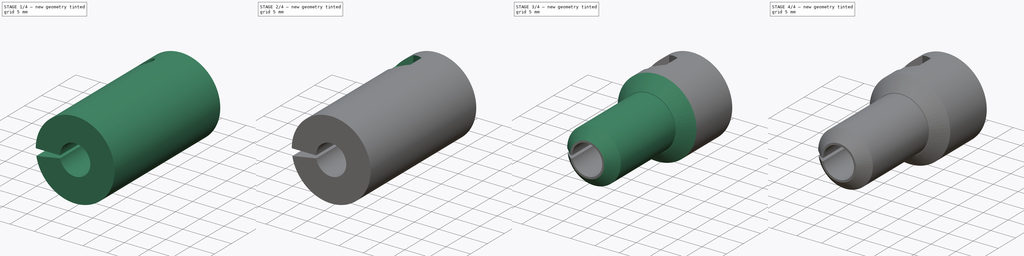
[diagram: build sequence overview — one tinted view per stage of 4, left to right]
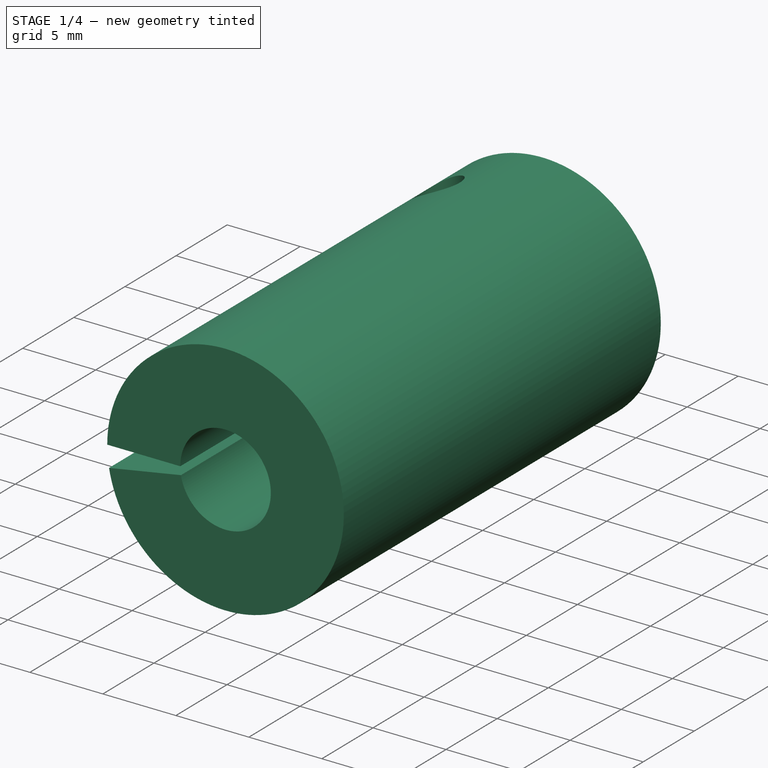
[diagram: stage 1 of 4 — iso view after this stage's code; geometry added in this stage tinted green]
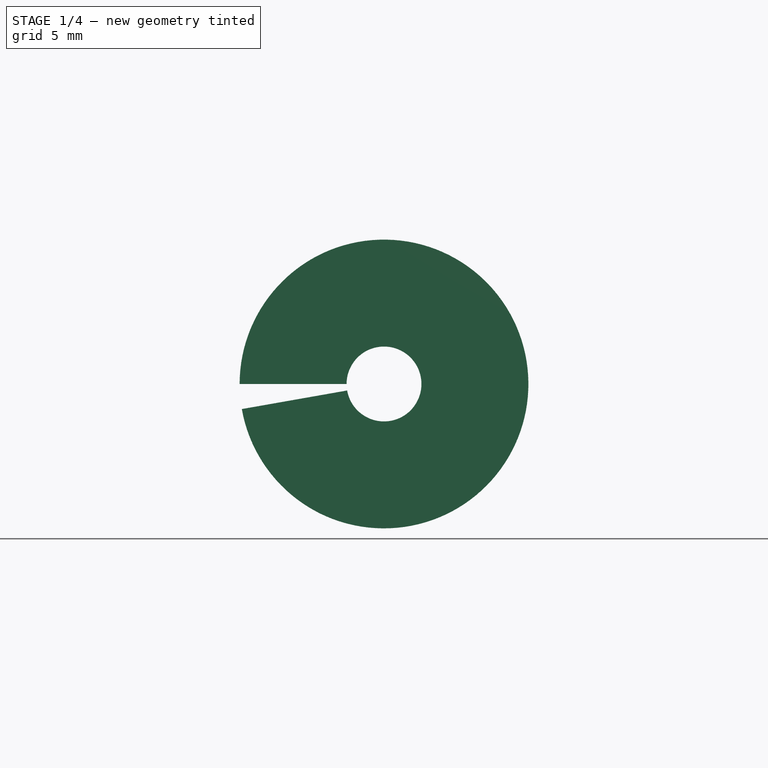
[diagram: stage 1 of 4 — front view after this stage's code; geometry added in this stage tinted green]
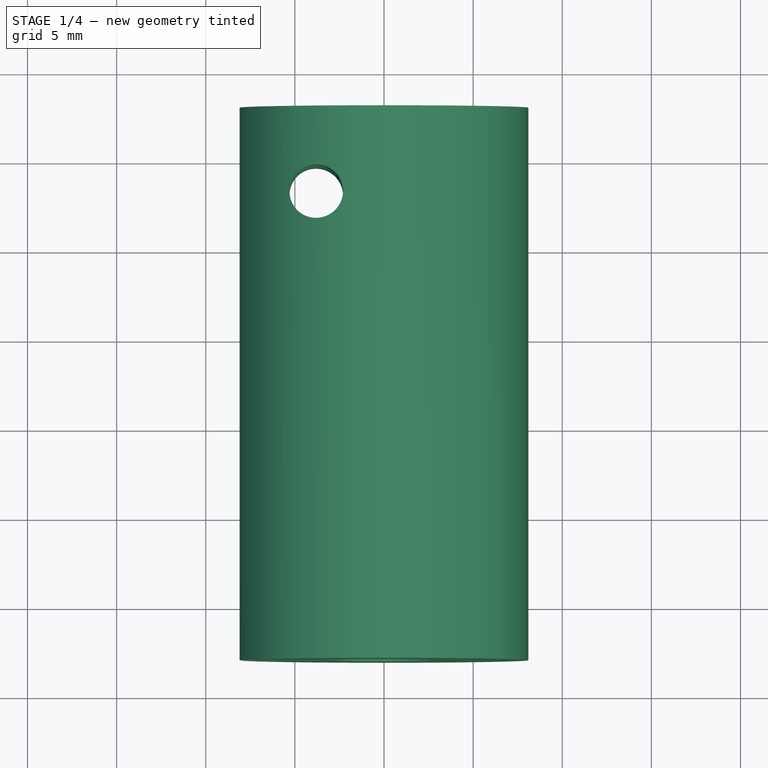
[diagram: stage 1 of 4 — top view after this stage's code; geometry added in this stage tinted green]
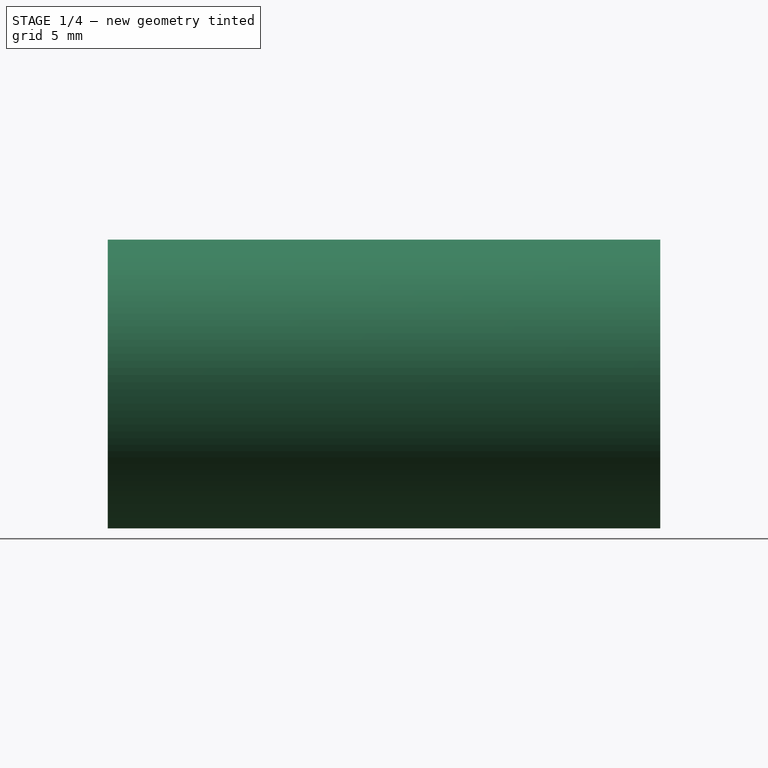
[diagram: stage 1 of 4 — right view after this stage's code; geometry added in this stage tinted green]
FCSTD DOCUMENT  (FreeCAD 0.21R33771 (Git))
Label: encoder_conector
License: All rights reserved
LicenseURL: http://en.wikipedia.org/wiki/All_rights_reserved
objects: Sketcher::SketchObject×6, PartDesign::Pocket×4, PartDesign::Chamfer×3, PartDesign::Plane×2, PartDesign::Revolution×1, PartDesign::Pad×1, PartDesign::Body×1
note: 27 computed .brp shape members not serialized (recipe doc carries the construction recipe); baked Part::Feature solids carry a one-line shape summary decoded from their .brp

FEATURE [Sketcher::SketchObject] Sketch
  FullyConstrained = true
  MapMode = 5
  Support = -> [XY_Plane]
  sketch-geometry (6):
    g0: LineSegment StartX=-2.1 StartY=8 StartZ=0 EndX=-2.1 EndY=0 EndZ=0
    g1: LineSegment StartX=-2.1 StartY=0 StartZ=0 EndX=-3.1 EndY=0 EndZ=0
    g2: LineSegment StartX=-3.1 StartY=0 StartZ=0 EndX=-3.1 EndY=-23 EndZ=0
    g3: LineSegment StartX=-3.1 StartY=-23 StartZ=0 EndX=-8.1 EndY=-23 EndZ=0
    g4: LineSegment StartX=-8.1 StartY=-23 StartZ=0 EndX=-8.1 EndY=8 EndZ=0
    g5: LineSegment StartX=-8.1 StartY=8 StartZ=0 EndX=-2.1 EndY=8 EndZ=0
  constraints (18):
    c: PointOnObject(g0,g-1)
    c: Vertical(g0)
    c: Coincident(g1,g0)
    c: Horizontal(g1)
    c: Vertical(g2)
    c: Coincident(g3,g2)
    c: Horizontal(g3)
    c: Coincident(g4,g3)
    c: Vertical(g4)
    c: Coincident(g5,g0)
    c: Horizontal(g5)
    c: Coincident(g1,g2)
    c: Coincident(g5,g4)
    c: DistanceX(g0,g-1) = 2.1
    c: DistanceY(g0,g0) = 8
    c: DistanceY(g4,g4) = 31
    c: DistanceX(g2,g-1) = 3.1
    c: DistanceX(g5,g5) = 6
FEATURE [PartDesign::Revolution] Revolution
  Angle = 350
  Axis = (0,1,0)
  Base = (0,0,0)
  Profile = -> Sketch
  ReferenceAxis = -> Sketch [V_Axis]
FEATURE [PartDesign::Plane] DatumPlane
  AttachmentOffset = pos=(0,0,14) rot=(0,0,1;0rad)
  Length = 60
  MapMode = 5
  Placement = pos=(0,0,14) rot=(0,0,1;0rad)
  ResizeMode = 0
  Support = -> [XY_Plane]
  Width = 60
FEATURE [Sketcher::SketchObject] Sketch002
  FullyConstrained = true
  MapMode = 5
  Placement = pos=(0,0,14) rot=(0,0,1;0rad)
  Support = -> [DatumPlane]
  sketch-geometry (1):
    g0: Circle CenterX=-3.8 CenterY=3.2 CenterZ=0 NormalX=0 NormalY=0 NormalZ=1 AngleXU=0 Radius=1.5
  constraints (3):
    c: Diameter(g0) = 3
    c: DistanceX(g0,g-1) = 3.8
    c: DistanceY(g-1,g0) = 3.2
FEATURE [Sketcher::SketchObject] Sketch001
  ExternalGeometry = -> [Sketch002]
  FullyConstrained = true
  MapMode = 5
  Placement = pos=(0,0,14) rot=(0,0,1;0rad)
  Support = -> [DatumPlane]
  sketch-geometry (7):
    g0: LineSegment StartX=-3.8 StartY=-0.1 StartZ=0 EndX=-0.942116 EndY=1.55 EndZ=0
    g1: LineSegment StartX=-0.942116 StartY=1.55 StartZ=0 EndX=-0.942116 EndY=4.85 EndZ=0
    g2: LineSegment StartX=-0.942116 StartY=4.85 StartZ=0 EndX=-3.8 EndY=6.5 EndZ=0
    g3: LineSegment StartX=-3.8 StartY=6.5 StartZ=0 EndX=-6.65788 EndY=4.85 EndZ=0
    g4: LineSegment StartX=-6.65788 StartY=4.85 StartZ=0 EndX=-6.65788 EndY=1.55 EndZ=0
    g5: LineSegment StartX=-6.65788 StartY=1.55 StartZ=0 EndX=-3.8 EndY=-0.1 EndZ=0
    g6: Circle CenterX=-3.8 CenterY=3.2 CenterZ=0 NormalX=0 NormalY=0 NormalZ=1 AngleXU=0 Radius=3.3
  constraints (16):
    c: Coincident(g0,g1)
    c: Coincident(g1,g2)
    c: Coincident(g2,g3)
    c: Coincident(g3,g4)
    c: Coincident(g4,g5)
    c: Coincident(g5,g0)
    c: Equal(g0, g1-g5) x5
    c: PointOnObject(g0,g6)
    c: PointOnObject(g1,g6)
    c: PointOnObject(g2,g6)
    c: PointOnObject(g3,g6)
    c: PointOnObject(g4,g6)
    c: PointOnObject(g5,g6)
    c: Vertical(g1)
    c: DistanceY(g0,g2) = 6.6
    c: Coincident(g6,g-3)
FEATURE [PartDesign::Pocket] Pocket
  BaseFeature = -> Revolution
  Direction = (0,0,-1)
  Length = 5
  Length2 = 5
  Profile = -> Sketch002
  ReferenceAxis = -> Sketch002 [N_Axis]
  Type = 1
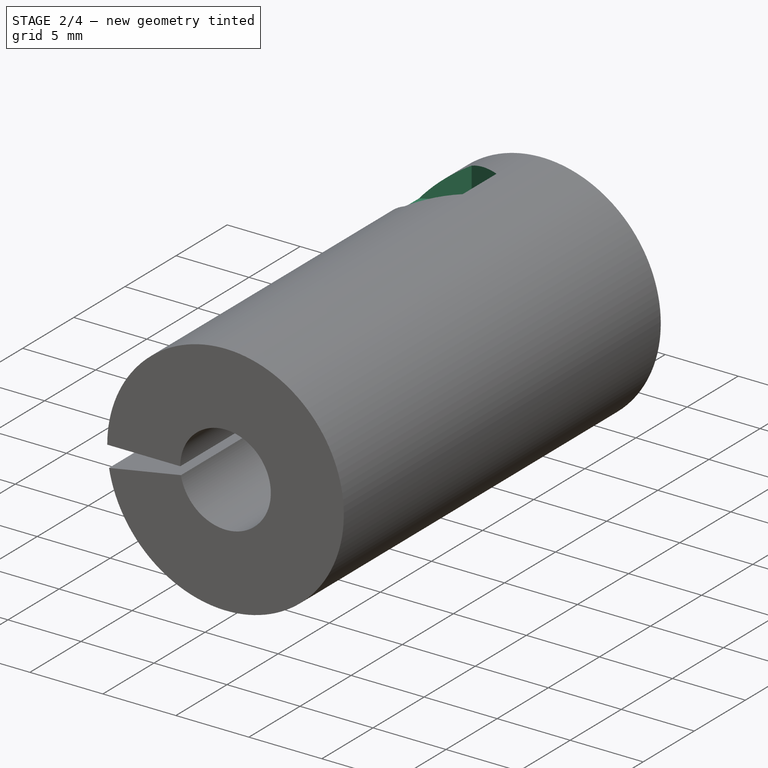
[diagram: stage 2 of 4 — iso view after this stage's code; geometry added in this stage tinted green]
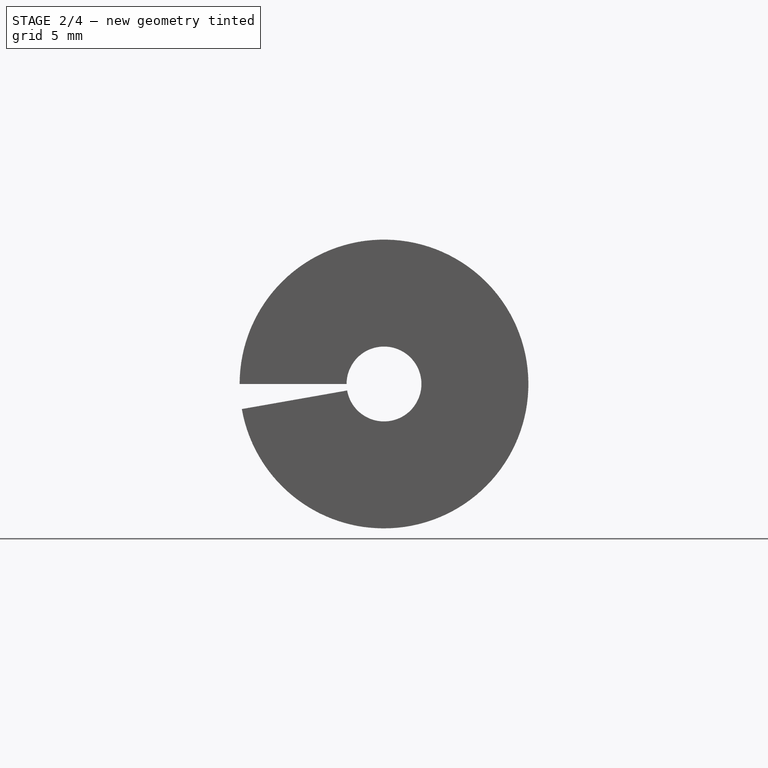
[diagram: stage 2 of 4 — front view after this stage's code; geometry added in this stage tinted green]
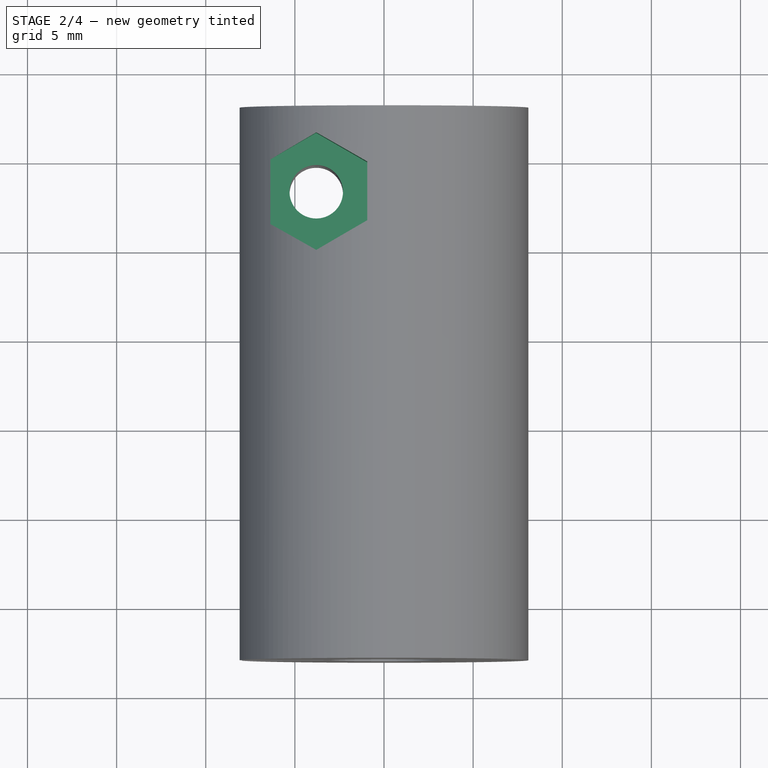
[diagram: stage 2 of 4 — top view after this stage's code; geometry added in this stage tinted green]
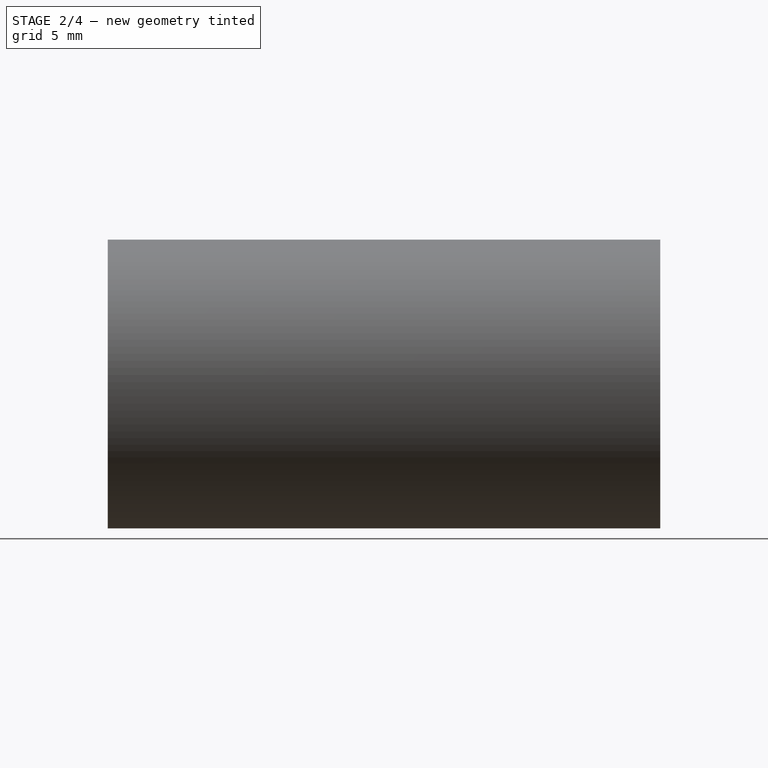
[diagram: stage 2 of 4 — right view after this stage's code; geometry added in this stage tinted green]
FEATURE [PartDesign::Pocket] Pocket001
  BaseFeature = -> Pocket
  Direction = (0,0,-1)
  Length = 9
  Length2 = 5
  Profile = -> Sketch001
  ReferenceAxis = -> Sketch001 [N_Axis]
  Type = 0
FEATURE [PartDesign::Plane] DatumPlane001
  AttachmentOffset = pos=(0,0,-15) rot=(0,0,1;0rad)
  Length = 60
  MapMode = 5
  Placement = pos=(0,0,-15) rot=(0,0,1;0rad)
  ResizeMode = 0
  Support = -> [XY_Plane]
  Width = 60
FEATURE [Sketcher::SketchObject] Sketch003
  ExternalGeometry = -> [Sketch002]
  FullyConstrained = true
  MapMode = 5
  Placement = pos=(0,0,-15) rot=(0,0,1;0rad)
  Support = -> [DatumPlane001]
  sketch-geometry (1):
    g0: Circle CenterX=-3.8 CenterY=3.2 CenterZ=0 NormalX=0 NormalY=0 NormalZ=1 AngleXU=0 Radius=2.7
  constraints (2):
    c: Coincident(g0,g-3)
    c: Diameter(g0) = 5.4
FEATURE [PartDesign::Pocket] Pocket002
  BaseFeature = -> Pocket001
  Direction = (0,0,-1)
  Length = 11
  Length2 = 5
  Profile = -> Sketch003
  ReferenceAxis = -> Sketch003 [N_Axis]
  Reversed = true
  Type = 0
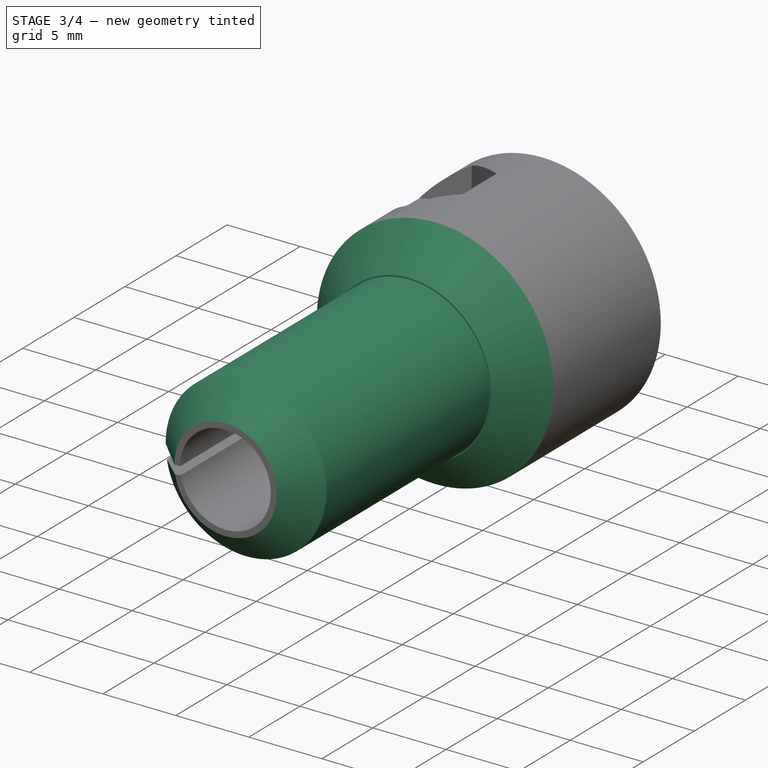
[diagram: stage 3 of 4 — iso view after this stage's code; geometry added in this stage tinted green]
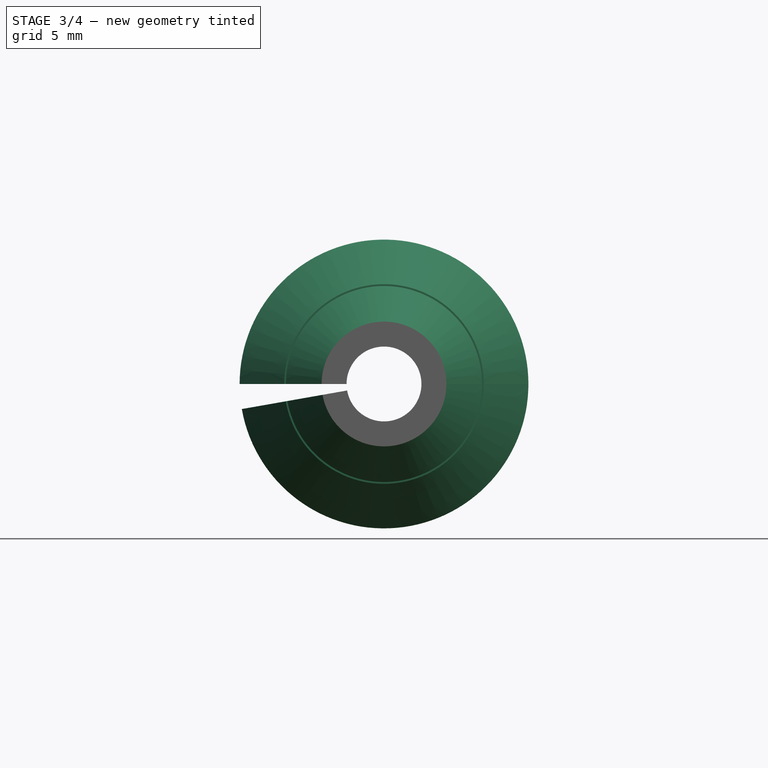
[diagram: stage 3 of 4 — front view after this stage's code; geometry added in this stage tinted green]
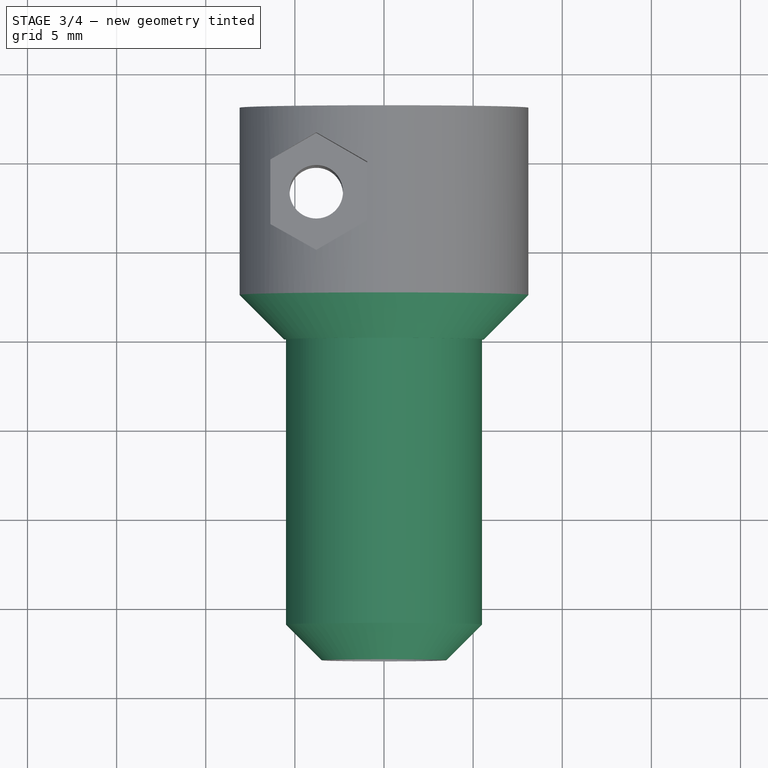
[diagram: stage 3 of 4 — top view after this stage's code; geometry added in this stage tinted green]
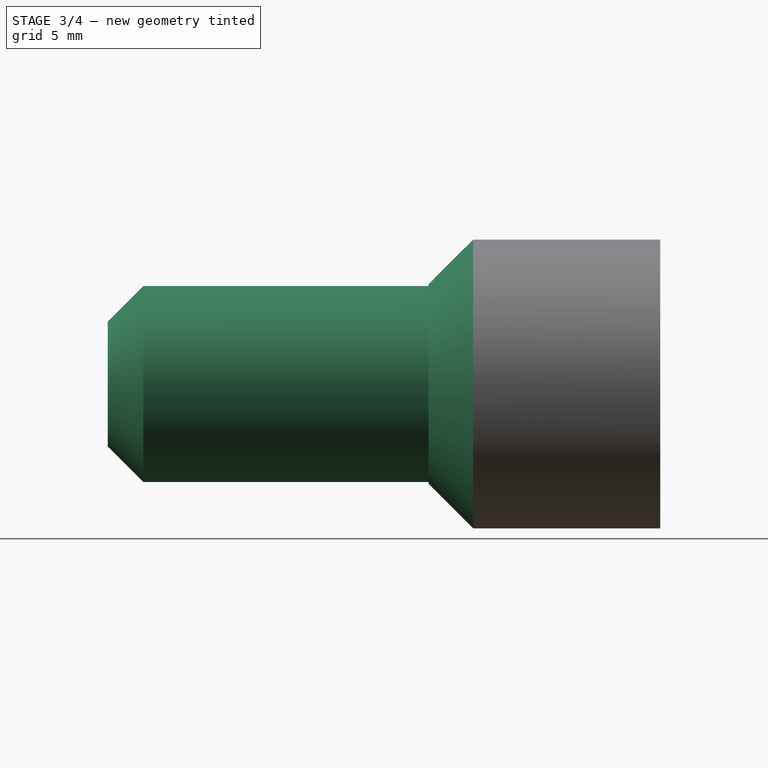
[diagram: stage 3 of 4 — right view after this stage's code; geometry added in this stage tinted green]
FEATURE [Sketcher::SketchObject] Sketch004
  ExternalGeometry = -> [Pocket002]
  FullyConstrained = true
  MapMode = 5
  Placement = pos=(0,-23,0) rot=(1,0,0;1.5708rad)
  Support = -> [Pocket002]
  sketch-geometry (2):
    g0: Circle CenterX=0 CenterY=0 CenterZ=0 NormalX=0 NormalY=0 NormalZ=1 AngleXU=0 Radius=5.5
    g1: Circle CenterX=0 CenterY=0 CenterZ=0 NormalX=0 NormalY=0 NormalZ=1 AngleXU=0 Radius=8.1
  constraints (4):
    c: Coincident(g0,g-1)
    c: Diameter(g0) = 11
    c: Coincident(g1,g0)
    c: Equal(g1,g-3)
FEATURE [PartDesign::Pocket] Pocket003
  BaseFeature = -> Pocket002
  Direction = (0,1,-2e-16)
  Length = 18
  Length2 = 5
  Profile = -> Sketch004
  ReferenceAxis = -> Sketch004 [N_Axis]
  Type = 0
FEATURE [PartDesign::Chamfer] Chamfer
  Angle = 45
  Base = -> Pocket003 [Edge23]
  BaseFeature = -> Pocket003
  ChamferType = 0
  FlipDirection = false
  Size = 2.5
  Size2 = 1
  SupportTransform = false
  UseAllEdges = false
FEATURE [PartDesign::Chamfer] Chamfer001
  Angle = 45
  Base = -> Chamfer [Edge30]
  BaseFeature = -> Chamfer
  ChamferType = 0
  FlipDirection = false
  Size = 2
  Size2 = 1
  SupportTransform = false
  UseAllEdges = false
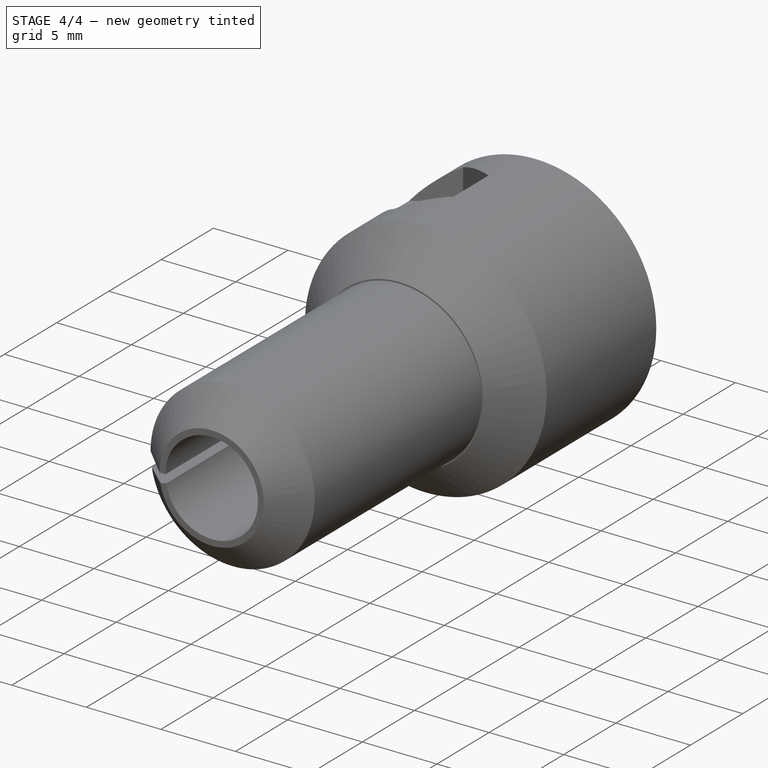
[diagram: stage 4 of 4 — iso view after this stage's code; geometry added in this stage tinted green]
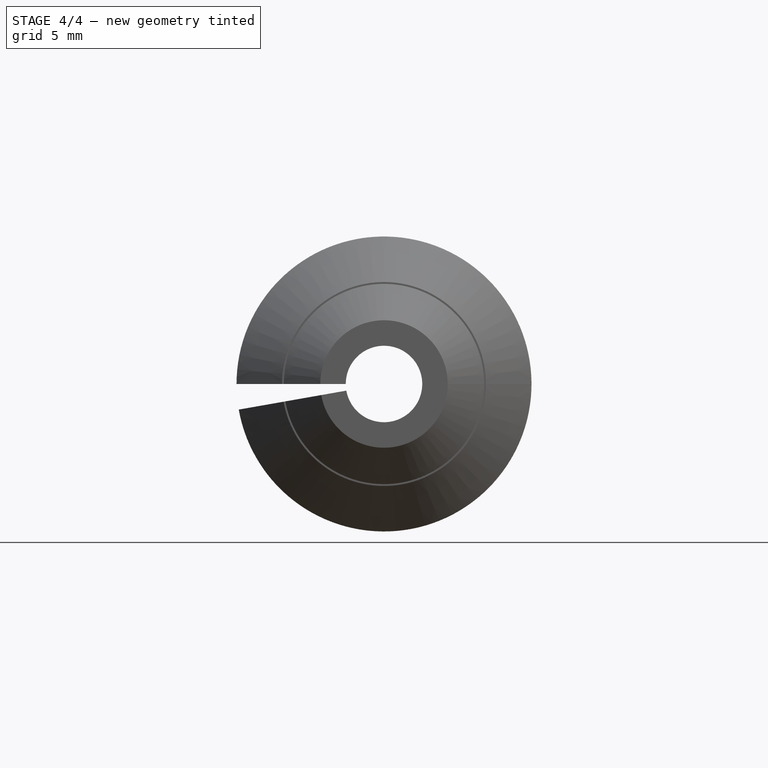
[diagram: stage 4 of 4 — front view after this stage's code; geometry added in this stage tinted green]
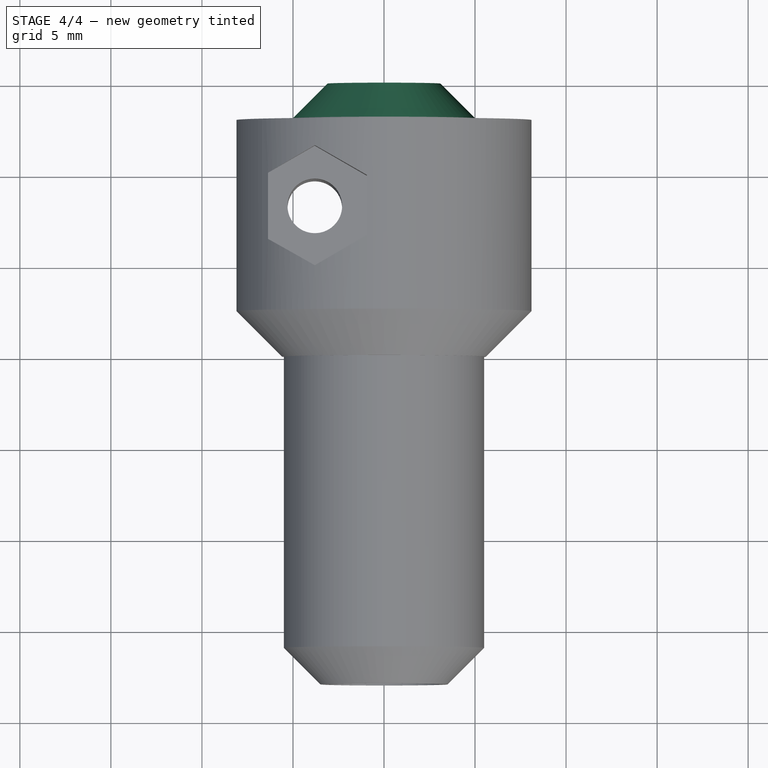
[diagram: stage 4 of 4 — top view after this stage's code; geometry added in this stage tinted green]
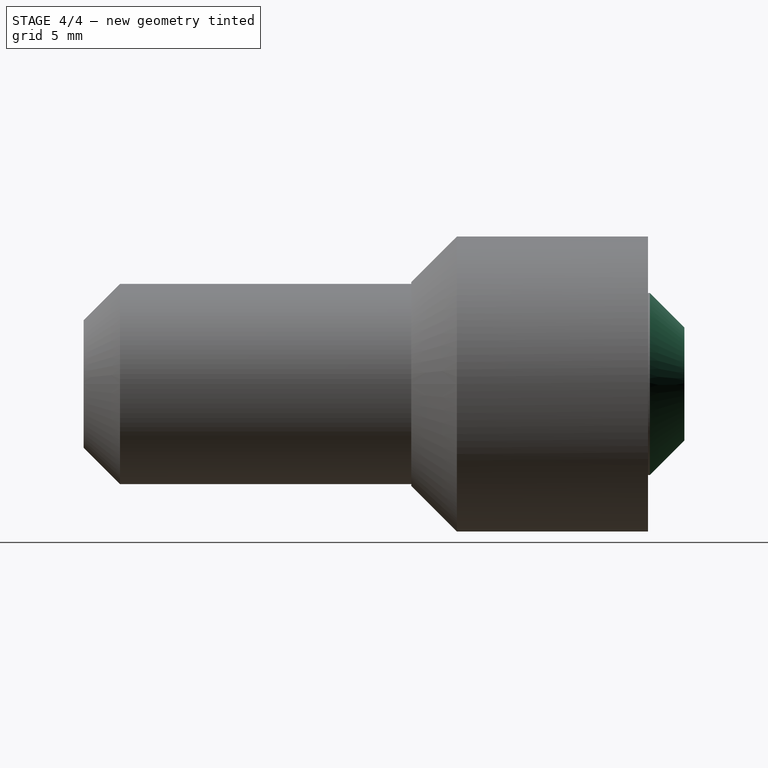
[diagram: stage 4 of 4 — right view after this stage's code; geometry added in this stage tinted green]
FEATURE [Sketcher::SketchObject] Sketch005
  ExternalGeometry = -> [Chamfer001]
  FullyConstrained = true
  MapMode = 5
  Placement = pos=(0,8,0) rot=(0,0.707107,0.707107;3.14159rad)
  Support = -> [Chamfer001]
  sketch-geometry (4):
    g0: ArcOfCircle CenterX=0 CenterY=0 CenterZ=0 NormalX=0 NormalY=0 NormalZ=1 AngleXU=0 Radius=5 StartAngle=0 EndAngle=6.10865
    g1: ArcOfCircle CenterX=-2e-16 CenterY=-1.8e-15 CenterZ=0 NormalX=0 NormalY=0 NormalZ=1 AngleXU=0 Radius=2.1 StartAngle=9e-16 EndAngle=6.10865
    g2: LineSegment StartX=2.1 StartY=0 StartZ=0 EndX=5 EndY=0 EndZ=0
    g3: LineSegment StartX=2.0681 StartY=-0.364661 StartZ=0 EndX=4.92404 EndY=-0.868241 EndZ=0
  constraints (11):
    c: Coincident(g0,g-1)
    c: PointOnObject(g0,g-3)
    c: Diameter(g0) = 10
    c: Coincident(g1,g-4)
    c: Coincident(g1,g-3)
    c: Equal(g1,g-5)
    c: Coincident(g2,g1)
    c: Coincident(g2,g0)
    c: Horizontal(g2)
    c: Coincident(g3,g1)
    c: Coincident(g3,g0)
FEATURE [PartDesign::Pad] Pad
  BaseFeature = -> Chamfer001
  Direction = (0,1,-2e-16)
  Length = 2
  Length2 = 10
  Profile = -> Sketch005
  ReferenceAxis = -> Sketch005 [N_Axis]
  Type = 0
FEATURE [PartDesign::Chamfer] Chamfer002
  Angle = 45
  Base = -> Pad [Edge68]
  BaseFeature = -> Pad
  ChamferType = 0
  FlipDirection = false
  Size = 1.9
  Size2 = 1
  SupportTransform = false
  UseAllEdges = false
FEATURE [PartDesign::Body] Body
  Group = -> [Sketch,Revolution,DatumPlane,Sketch001,Sketch002,Pocket,Pocket001,DatumPlane001,Sketch003,Pocket002,Sketch004,Pocket003,Chamfer,Chamfer001,Sketch005,Pad,Chamfer002]
  Origin = -> Origin
  Tip = -> Chamfer002
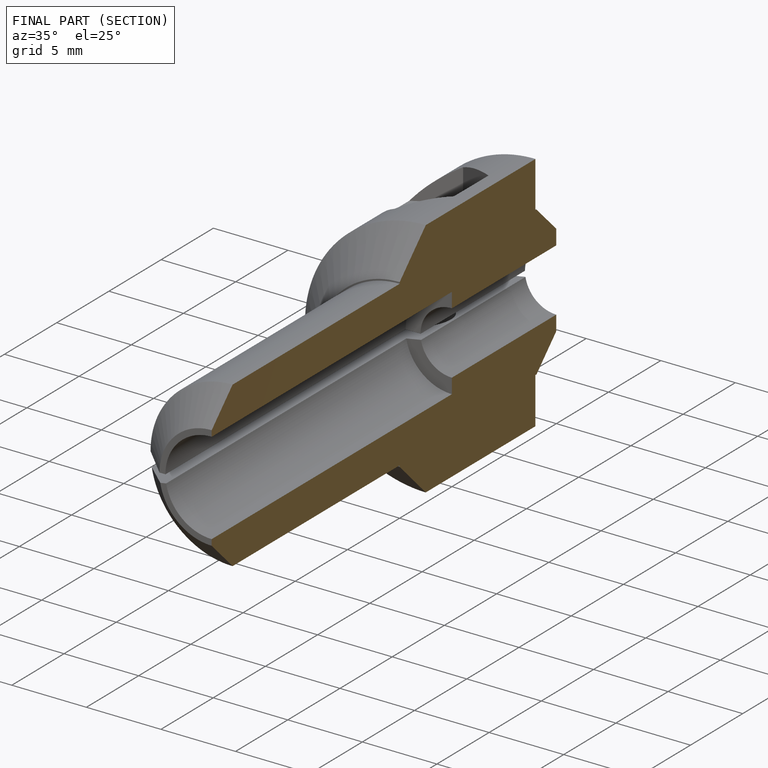
[diagram: finished part — half-section view (interior)]
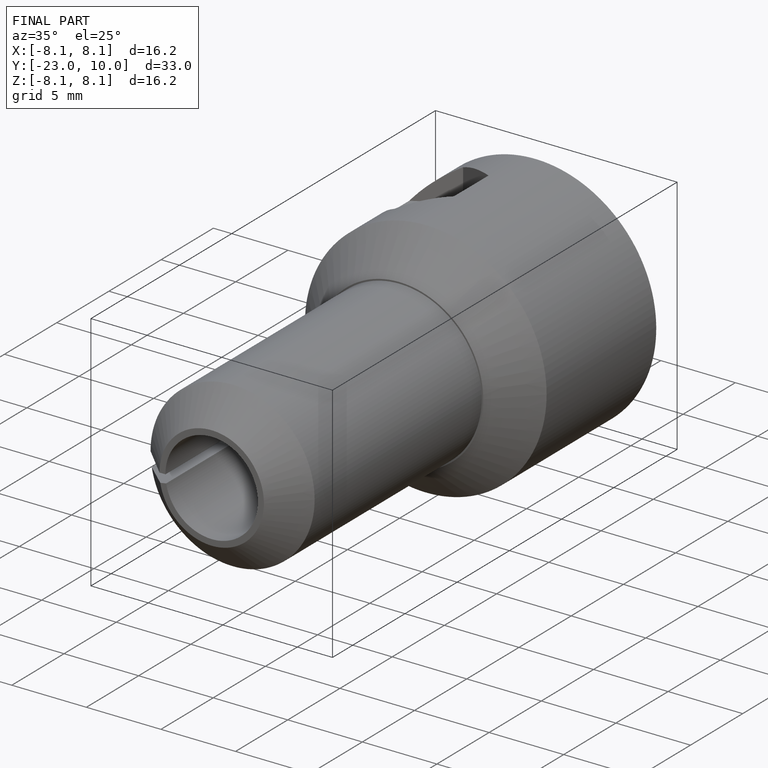
[diagram: finished part — iso view with bounding-box wireframe]
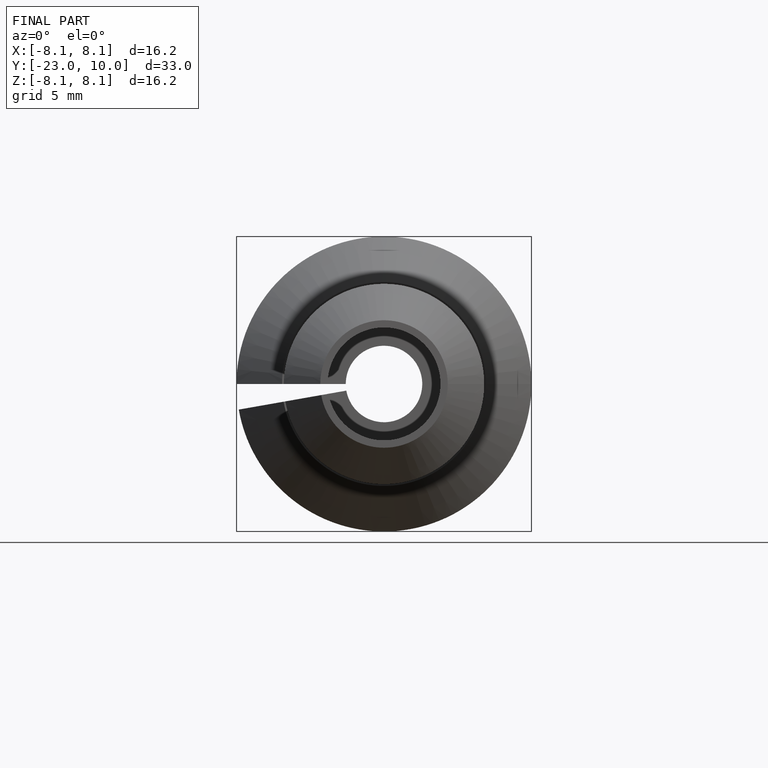
[diagram: finished part — front view with bounding-box wireframe]
